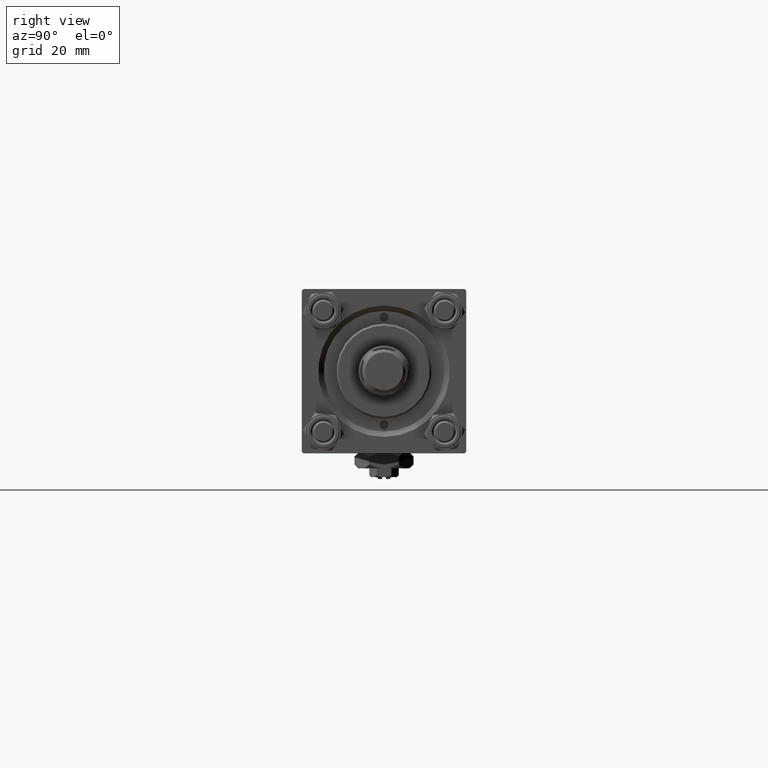
[diagram: clean part render]
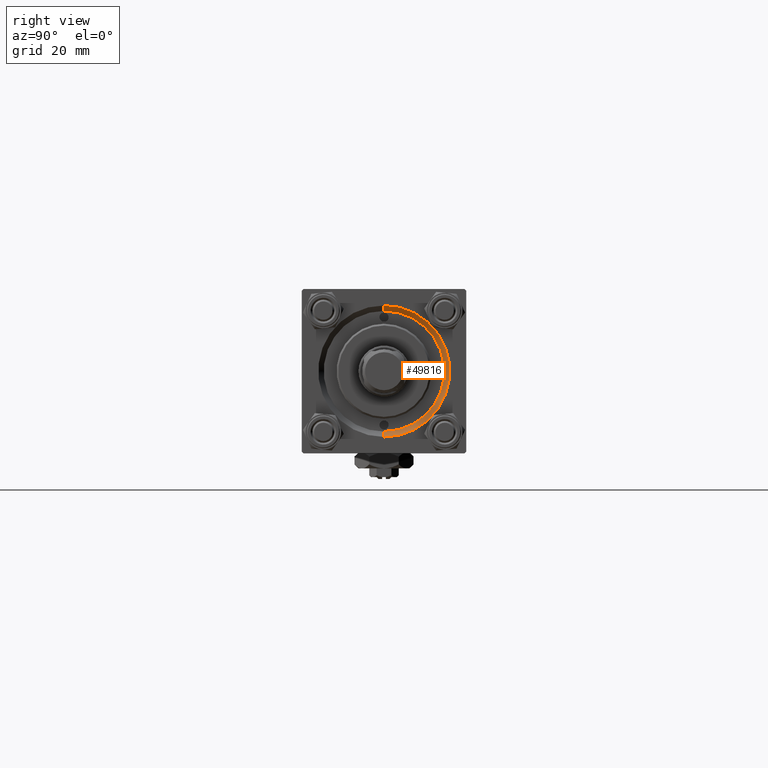
[diagram: same view with one face highlighted and labeled with its STEP entity id]
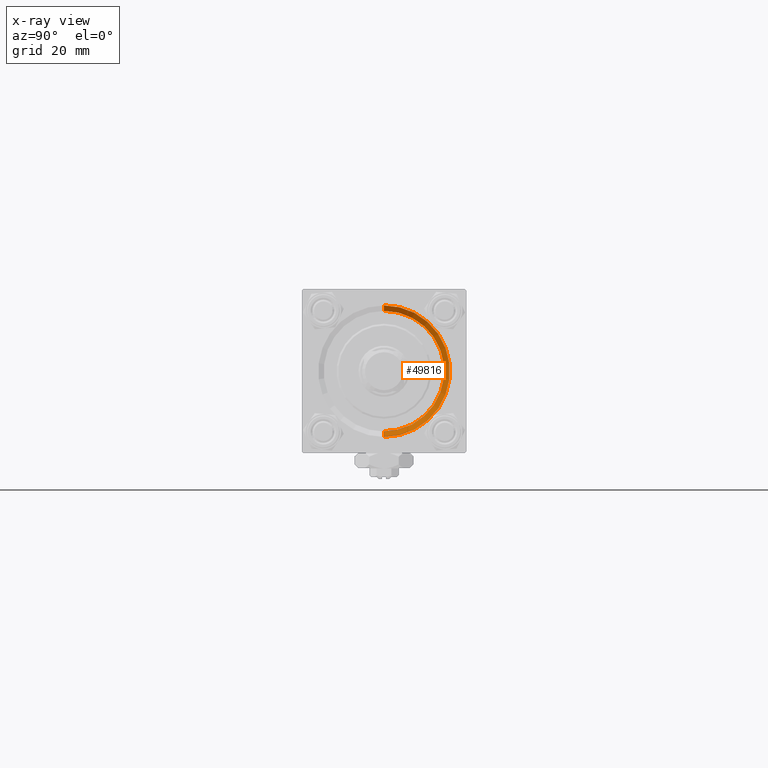
[diagram: x-ray of the same camera — body ghosted, the highlighted face saturated]
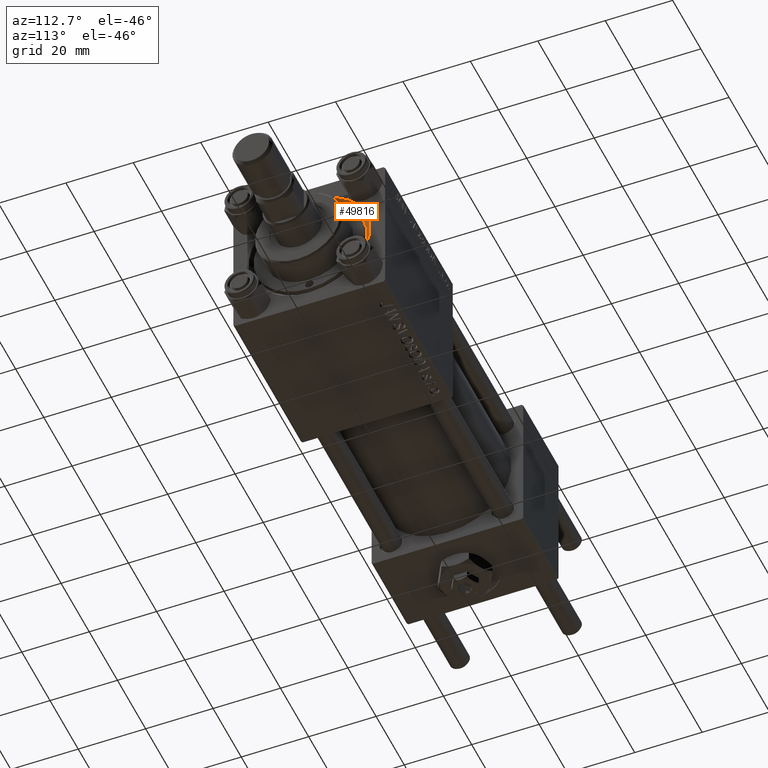
[diagram: same view with one face highlighted and labeled with its STEP entity id]
A machine part, right view. The second image highlights one B-rep face of the part: STEP entity #49816.
The next image is the same camera in x-ray: the body ghosted, the highlighted face saturated — about 0% of this face is hidden behind the body in this view.
A second angle (auxiliary view) of the same face is appended — the face is thin or edge-on in the first view.
In plain terms, the highlighted conical surface has half-angle 45 deg.
Its self-contained STEP definition (entity closure, byte-faithful):
#3290 = CARTESIAN_POINT ( 'NONE',  ( 121.5000000000000142, 0.000000000000000000, 0.000000000000000000 ) ) ;
#5000 = EDGE_CURVE ( 'NONE', #23046, #32683, #20743, .T. ) ;
#6386 = AXIS2_PLACEMENT_3D ( 'NONE', #28772, #9457, #41156 ) ;
#6435 = CARTESIAN_POINT ( 'NONE',  ( 123.0000000000000142, 0.000000000000000000, 0.000000000000000000 ) ) ;
#9457 = DIRECTION ( 'NONE',  ( 1.000000000000000000, 0.000000000000000000, 0.000000000000000000 ) ) ;
#12238 = EDGE_LOOP ( 'NONE', ( #30010, #15847, #44658, #42073 ) ) ;
#14232 = CARTESIAN_POINT ( 'NONE',  ( 121.5000000000000142, 2.020667218593133100E-15, 16.50000000000000000 ) ) ;
#14958 = DIRECTION ( 'NONE',  ( 0.7071067811865474617, 8.659560562354932858E-17, 0.7071067811865474617 ) ) ;
#15780 = CARTESIAN_POINT ( 'NONE',  ( 123.0000000000000142, 2.204364238465235822E-15, 18.00000000000000355 ) ) ;
#15847 = ORIENTED_EDGE ( 'NONE', *, *, #5000, .F. ) ;
#16123 = AXIS2_PLACEMENT_3D ( 'NONE', #3290, #51072, #46602 ) ;
#17370 = EDGE_CURVE ( 'NONE', #32683, #18669, #31333, .T. ) ;
#18347 = DIRECTION ( 'NONE',  ( -1.000000000000000000, 0.000000000000000000, -0.000000000000000000 ) ) ;
#18433 = EDGE_CURVE ( 'NONE', #18669, #44784, #51274, .T. ) ;
#18669 = VERTEX_POINT ( 'NONE', #15780 ) ;
#20743 = CIRCLE ( 'NONE', #6386, 16.50000000000000000 ) ;
#21155 = VECTOR ( 'NONE', #45983, 1000.000000000000114 ) ;
#23046 = VERTEX_POINT ( 'NONE', #33818 ) ;
#28054 = EDGE_CURVE ( 'NONE', #23046, #44784, #30686, .T. ) ;
#28772 = CARTESIAN_POINT ( 'NONE',  ( 121.5000000000000142, 0.000000000000000000, 0.000000000000000000 ) ) ;
#30010 = ORIENTED_EDGE ( 'NONE', *, *, #17370, .F. ) ;
#30686 = LINE ( 'NONE', #46755, #21155 ) ;
#31333 = LINE ( 'NONE', #51880, #36093 ) ;
#32683 = VERTEX_POINT ( 'NONE', #14232 ) ;
#33798 = CONICAL_SURFACE ( 'NONE', #16123, 16.50000000000000000, 0.7853981633974482790 ) ;
#33818 = CARTESIAN_POINT ( 'NONE',  ( 121.5000000000000142, 0.000000000000000000, -16.50000000000000000 ) ) ;
#36093 = VECTOR ( 'NONE', #14958, 1000.000000000000114 ) ;
#41134 = CARTESIAN_POINT ( 'NONE',  ( 123.0000000000000142, 0.000000000000000000, -18.00000000000000355 ) ) ;
#41156 = DIRECTION ( 'NONE',  ( 0.000000000000000000, 0.000000000000000000, 1.000000000000000000 ) ) ;
#42073 = ORIENTED_EDGE ( 'NONE', *, *, #18433, .F. ) ;
#42653 = FACE_OUTER_BOUND ( 'NONE', #12238, .T. ) ;
#44658 = ORIENTED_EDGE ( 'NONE', *, *, #28054, .T. ) ;
#44784 = VERTEX_POINT ( 'NONE', #41134 ) ;
#45983 = DIRECTION ( 'NONE',  ( 0.7071067811865474617, 0.000000000000000000, -0.7071067811865474617 ) ) ;
#46574 = DIRECTION ( 'NONE',  ( 0.000000000000000000, 0.000000000000000000, 1.000000000000000000 ) ) ;
#46602 = DIRECTION ( 'NONE',  ( 0.000000000000000000, 0.000000000000000000, -1.000000000000000000 ) ) ;
#46755 = CARTESIAN_POINT ( 'NONE',  ( 121.5000000000000142, 0.000000000000000000, -16.50000000000000000 ) ) ;
#47058 = AXIS2_PLACEMENT_3D ( 'NONE', #6435, #18347, #46574 ) ;
#49816 = ADVANCED_FACE ( 'NONE', ( #42653 ), #33798, .F. ) ;
#51072 = DIRECTION ( 'NONE',  ( 1.000000000000000000, 0.000000000000000000, 0.000000000000000000 ) ) ;
#51274 = CIRCLE ( 'NONE', #47058, 18.00000000000000355 ) ;
#51880 = CARTESIAN_POINT ( 'NONE',  ( 121.5000000000000142, 2.020667218593133100E-15, 16.50000000000000000 ) ) ;